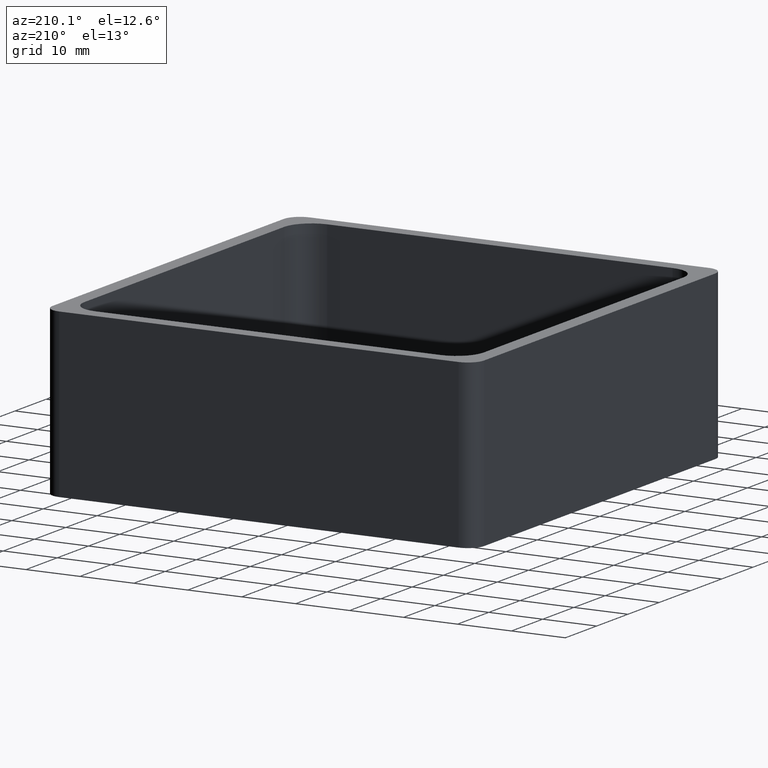
[diagram: clean part render]
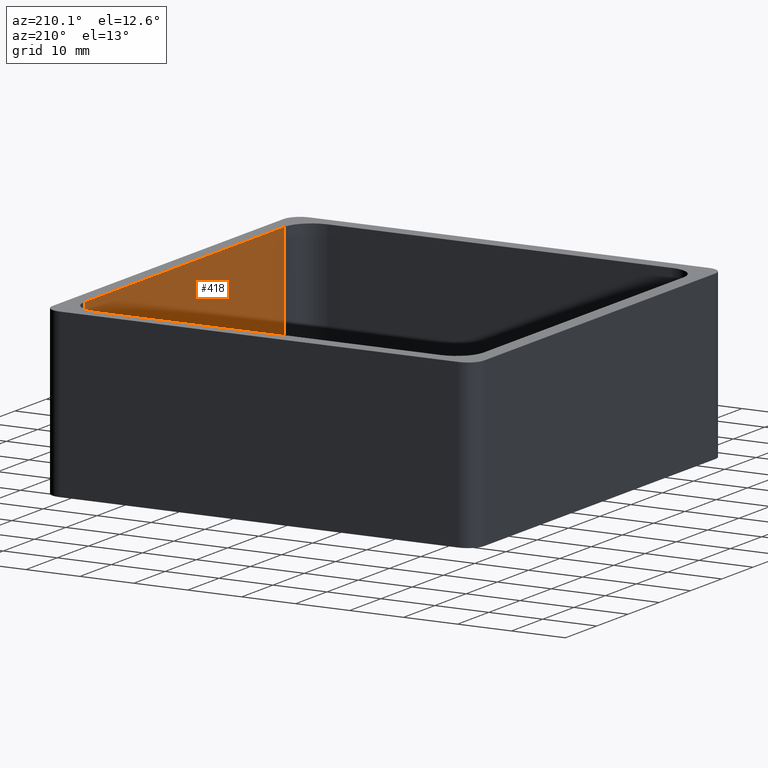
[diagram: same view with one face highlighted and labeled with its STEP entity id]
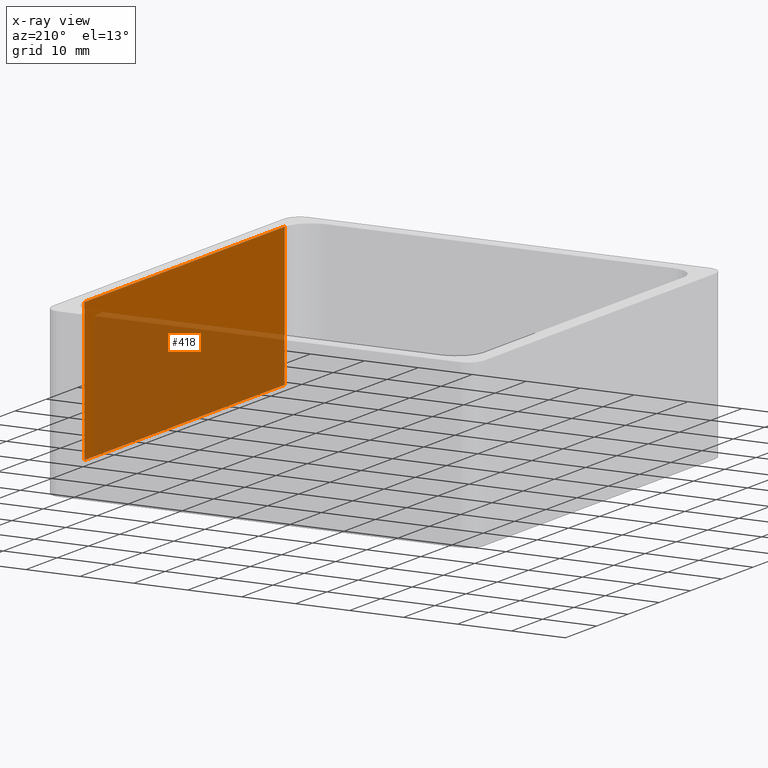
[diagram: x-ray of the same camera — body ghosted, the highlighted face saturated]
A machine part, auxiliary view. The second image highlights one B-rep face of the part: STEP entity #418.
The next image is the same camera in x-ray: the body ghosted, the highlighted face saturated — about 59% of this face is hidden behind the body in this view.
In plain terms, the highlighted planar face has unit normal (1, 0, 0).
Its self-contained STEP definition (entity closure, byte-faithful):
#18=PLANE('',#448);
#36=FACE_OUTER_BOUND('',#60,.T.);
#60=EDGE_LOOP('',(#299,#300,#301,#302));
#88=LINE('',#627,#132);
#89=LINE('',#631,#133);
#90=LINE('',#633,#134);
#91=LINE('',#634,#135);
#132=VECTOR('',#500,26.);
#133=VECTOR('',#505,64.);
#134=VECTOR('',#506,26.);
#135=VECTOR('',#507,64.);
#193=VERTEX_POINT('',#624);
#194=VERTEX_POINT('',#626);
#195=VERTEX_POINT('',#630);
#196=VERTEX_POINT('',#632);
#235=EDGE_CURVE('',#193,#194,#88,.T.);
#237=EDGE_CURVE('',#195,#193,#89,.T.);
#238=EDGE_CURVE('',#195,#196,#90,.T.);
#239=EDGE_CURVE('',#196,#194,#91,.T.);
#299=ORIENTED_EDGE('',*,*,#237,.F.);
#300=ORIENTED_EDGE('',*,*,#238,.T.);
#301=ORIENTED_EDGE('',*,*,#239,.T.);
#302=ORIENTED_EDGE('',*,*,#235,.F.);
#418=ADVANCED_FACE('',(#36),#18,.F.);
#448=AXIS2_PLACEMENT_3D('',#629,#503,#504);
#500=DIRECTION('',(0.,0.,-1.));
#503=DIRECTION('center_axis',(1.,1.38777878078145E-16,0.));
#504=DIRECTION('ref_axis',(0.,-1.,0.));
#505=DIRECTION('',(1.38777878078145E-16,-1.,0.));
#506=DIRECTION('',(0.,0.,-1.));
#507=DIRECTION('',(1.38777878078145E-16,-1.,0.));
#624=CARTESIAN_POINT('',(37.,-32.,30.5));
#626=CARTESIAN_POINT('',(37.,-32.,4.5));
#627=CARTESIAN_POINT('',(37.,-32.,30.5));
#629=CARTESIAN_POINT('Origin',(37.,32.,30.5));
#630=CARTESIAN_POINT('',(37.,32.,30.5));
#631=CARTESIAN_POINT('',(37.,16.,30.5));
#632=CARTESIAN_POINT('',(37.,32.,4.5));
#633=CARTESIAN_POINT('',(37.,32.,30.5));
#634=CARTESIAN_POINT('',(37.,-32.,4.5));